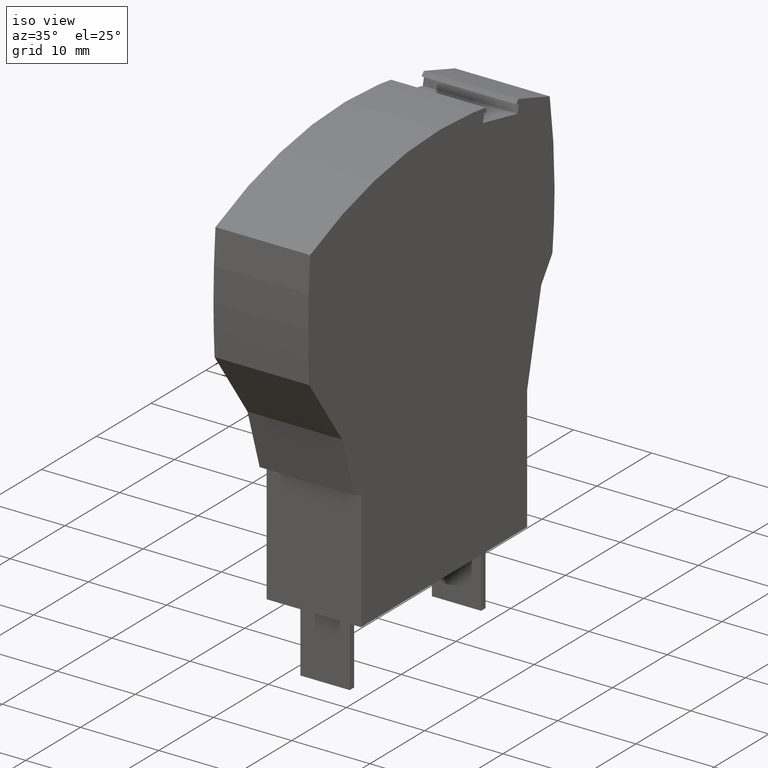
[diagram: clean part render]
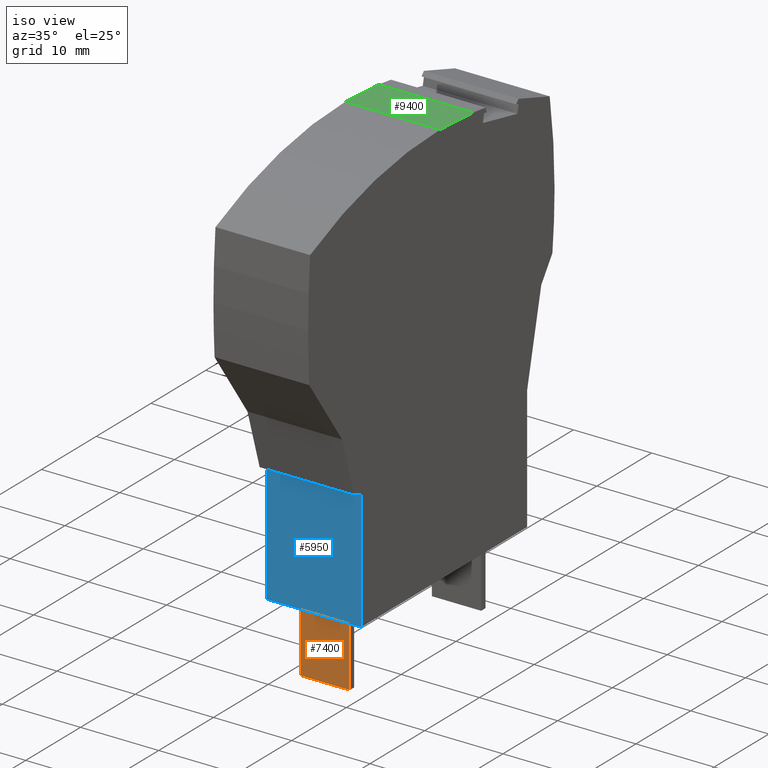
[diagram: same view with three faces highlighted in distinct colors, each labeled with its STEP entity id]
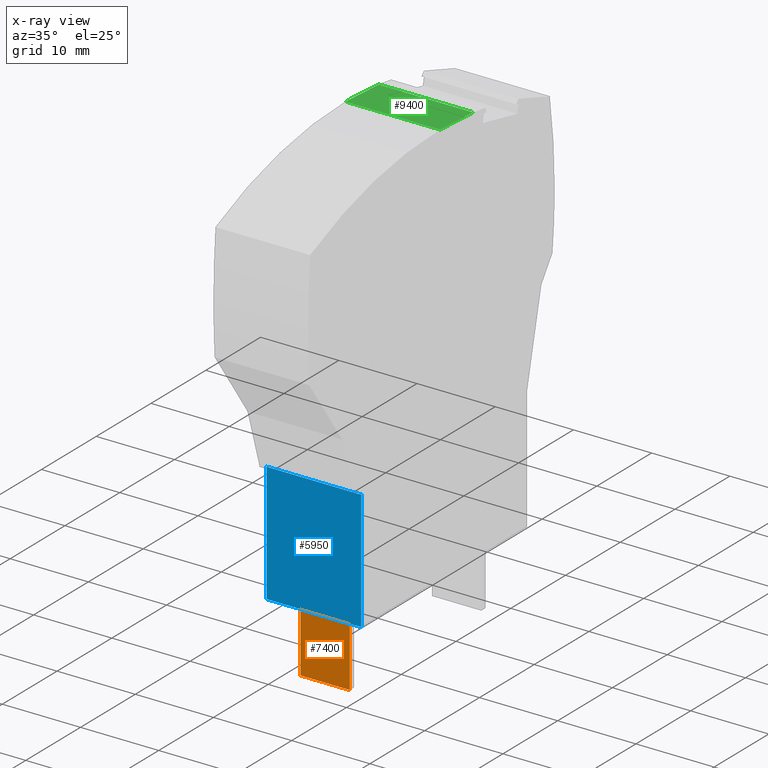
[diagram: x-ray of the same camera — body ghosted, the three highlighted faces saturated]
A machine part, iso view with three faces highlighted in distinct colors.
The next image is the same camera in x-ray (body ghosted, the three faces saturated) — at least one of them is partly hidden behind the body in this view.
Their STEP definitions:

[orange] entity #7400 — the highlighted planar face has unit normal (0, -1, -0).
#3370=CARTESIAN_POINT('',(12.5821672261091,-19.2000000000172,
44.3450000001206));
#3380=VERTEX_POINT('',#3370);
#3410=CARTESIAN_POINT('',(12.582167226109,-19.2500000000172,
44.3450000001206));
#3420=DIRECTION('',(1.11123366772477E-12,1.,0.));
#3430=VECTOR('',#3420,1.);
#3440=LINE('',#3410,#3430);
#3450=CARTESIAN_POINT('',(12.5821672261189,-10.4000000000172,
44.3450000001206));
#3460=VERTEX_POINT('',#3450);
#3470=EDGE_CURVE('',#3380,#3460,#3440,.T.);
#7100=CARTESIAN_POINT('',(12.5821672261194,-9.93357864378218,
44.3450000001206));
#7110=DIRECTION('',(1.,-1.11123366772477E-12,0.));
#7120=DIRECTION('',(1.11123366772477E-12,1.,0.));
#7130=AXIS2_PLACEMENT_3D('',#7100,#7110,#7120);
#7140=PLANE('',#7130);
#7150=ORIENTED_EDGE('',*,*,#3470,.T.);
#7160=CARTESIAN_POINT('',(12.5821672261091,-19.2000000000172,
44.3450000001206));
#7170=DIRECTION('',(0.,0.,1.));
#7180=VECTOR('',#7170,1.);
#7190=LINE('',#7160,#7180);
#7200=CARTESIAN_POINT('',(12.5821672261091,-19.2000000000172,
50.6450000001206));
#7210=VERTEX_POINT('',#7200);
#7220=EDGE_CURVE('',#3380,#7210,#7190,.T.);
#7230=ORIENTED_EDGE('',*,*,#7220,.F.);
#7240=CARTESIAN_POINT('',(12.582167226109,-19.2500000000172,
50.6450000001206));
#7250=DIRECTION('',(1.11123366772477E-12,1.,0.));
#7260=VECTOR('',#7250,1.);
#7270=LINE('',#7240,#7260);
#7280=CARTESIAN_POINT('',(12.5821672261189,-10.4000000000172,
50.6450000001206));
#7290=VERTEX_POINT('',#7280);
#7300=EDGE_CURVE('',#7210,#7290,#7270,.T.);
#7310=ORIENTED_EDGE('',*,*,#7300,.F.);
#7320=CARTESIAN_POINT('',(12.5821672261189,-10.4000000000172,
41.4450000001206));
#7330=DIRECTION('',(0.,0.,1.));
#7340=VECTOR('',#7330,1.);
#7350=LINE('',#7320,#7340);
#7360=EDGE_CURVE('',#3460,#7290,#7350,.T.);
#7370=ORIENTED_EDGE('',*,*,#7360,.T.);
#7380=EDGE_LOOP('',(#7370,#7310,#7230,#7150));
#7390=FACE_OUTER_BOUND('',#7380,.T.);
#7400=ADVANCED_FACE('',(#7390),#7140,.T.);

[blue] entity #5950 — the highlighted planar face has unit normal (0, -1, -0).
#1800=CARTESIAN_POINT('',(14.5821672261359,4.89999999998335,
53.5700000001206));
#1810=VERTEX_POINT('',#1800);
#1840=CARTESIAN_POINT('',(14.5821672261189,-10.4000000000194,
53.5700000001206));
#1850=DIRECTION('',(1.11123366772477E-12,1.,0.));
#1860=VECTOR('',#1850,1.);
#1870=LINE('',#1840,#1860);
#1880=CARTESIAN_POINT('',(14.5821672261189,-10.4000000000194,
53.5700000001206));
#1890=VERTEX_POINT('',#1880);
#1900=EDGE_CURVE('',#1890,#1810,#1870,.T.);
#4510=CARTESIAN_POINT('',(14.5821672261359,4.89999999998335,
41.4700000001206));
#4520=VERTEX_POINT('',#4510);
#4550=CARTESIAN_POINT('',(14.5821672261359,4.89999999998335,
41.4450000001206));
#4560=DIRECTION('',(0.,0.,-1.));
#4570=VECTOR('',#4560,1.);
#4580=LINE('',#4550,#4570);
#4590=EDGE_CURVE('',#1810,#4520,#4580,.T.);
#5720=CARTESIAN_POINT('',(14.5821672261359,4.89999999998335,
41.4450000001206));
#5730=DIRECTION('',(1.,-1.11123366772477E-12,0.));
#5740=DIRECTION('',(1.11123366772477E-12,1.,0.));
#5750=AXIS2_PLACEMENT_3D('',#5720,#5730,#5740);
#5760=PLANE('',#5750);
#5770=CARTESIAN_POINT('',(14.5821672261189,-10.4000000000194,
41.4450000001206));
#5780=DIRECTION('',(0.,0.,1.));
#5790=VECTOR('',#5780,1.);
#5800=LINE('',#5770,#5790);
#5810=CARTESIAN_POINT('',(14.5821672261189,-10.4000000000194,
41.4700000001206));
#5820=VERTEX_POINT('',#5810);
#5830=EDGE_CURVE('',#5820,#1890,#5800,.T.);
#5840=ORIENTED_EDGE('',*,*,#5830,.F.);
#5850=ORIENTED_EDGE('',*,*,#1900,.F.);
#5860=ORIENTED_EDGE('',*,*,#4590,.F.);
#5870=CARTESIAN_POINT('',(14.5821672261189,-10.4000000000194,
41.4700000001206));
#5880=DIRECTION('',(1.11123366772477E-12,1.,0.));
#5890=VECTOR('',#5880,1.);
#5900=LINE('',#5870,#5890);
#5910=EDGE_CURVE('',#5820,#4520,#5900,.T.);
#5920=ORIENTED_EDGE('',*,*,#5910,.T.);
#5930=EDGE_LOOP('',(#5920,#5860,#5850,#5840));
#5940=FACE_OUTER_BOUND('',#5930,.T.);
#5950=ADVANCED_FACE('',(#5940),#5760,.T.);

[green] entity #9400 — the highlighted planar face has unit normal (0, 0.0553, 0.9985).
#840=CARTESIAN_POINT('',(-5.87324549721038,41.2644310624907,
53.5700000001206));
#850=VERTEX_POINT('',#840);
#880=CARTESIAN_POINT('',(-5.87324549721044,41.2644310624907,
53.5700000001206));
#890=DIRECTION('',(0.998468041018534,0.055331465411738,0.));
#900=VECTOR('',#890,1.);
#910=LINE('',#880,#900);
#920=CARTESIAN_POINT('',(0.182167226181893,41.5999999999966,
53.5700000001206));
#930=VERTEX_POINT('',#920);
#940=EDGE_CURVE('',#850,#930,#910,.T.);
#8150=CARTESIAN_POINT('',(0.182167226181921,41.5999999999966,
41.4450000001206));
#8160=DIRECTION('',(0.,0.,1.));
#8170=VECTOR('',#8160,1.);
#8180=LINE('',#8150,#8170);
#8190=CARTESIAN_POINT('',(0.182167226181893,41.5999999999966,
41.4700000001206));
#8200=VERTEX_POINT('',#8190);
#8210=EDGE_CURVE('',#8200,#930,#8180,.T.);
#9170=CARTESIAN_POINT('',(0.182167226181884,41.5999999999966,
53.6700000001206));
#9180=DIRECTION('',(-0.055331465411738,0.998468041018534,0.));
#9190=DIRECTION('',(0.998468041018534,0.055331465411738,0.));
#9200=AXIS2_PLACEMENT_3D('',#9170,#9180,#9190);
#9210=PLANE('',#9200);
#9220=CARTESIAN_POINT('',(-5.87324549721037,41.2644310624907,0.));
#9230=DIRECTION('',(0.,0.,-1.));
#9240=VECTOR('',#9230,1.);
#9250=LINE('',#9220,#9240);
#9260=CARTESIAN_POINT('',(-5.87324549721038,41.2644310624907,
41.4700000001206));
#9270=VERTEX_POINT('',#9260);
#9280=EDGE_CURVE('',#850,#9270,#9250,.T.);
#9290=ORIENTED_EDGE('',*,*,#9280,.F.);
#9300=CARTESIAN_POINT('',(-2.77555756156289E-17,41.5899049552275,
41.4700000001206));
#9310=DIRECTION('',(0.998468041018534,0.055331465411738,0.));
#9320=VECTOR('',#9310,1.);
#9330=LINE('',#9300,#9320);
#9340=EDGE_CURVE('',#9270,#8200,#9330,.T.);
#9350=ORIENTED_EDGE('',*,*,#9340,.F.);
#9360=ORIENTED_EDGE('',*,*,#8210,.F.);
#9370=ORIENTED_EDGE('',*,*,#940,.T.);
#9380=EDGE_LOOP('',(#9370,#9360,#9350,#9290));
#9390=FACE_OUTER_BOUND('',#9380,.T.);
#9400=ADVANCED_FACE('',(#9390),#9210,.T.);